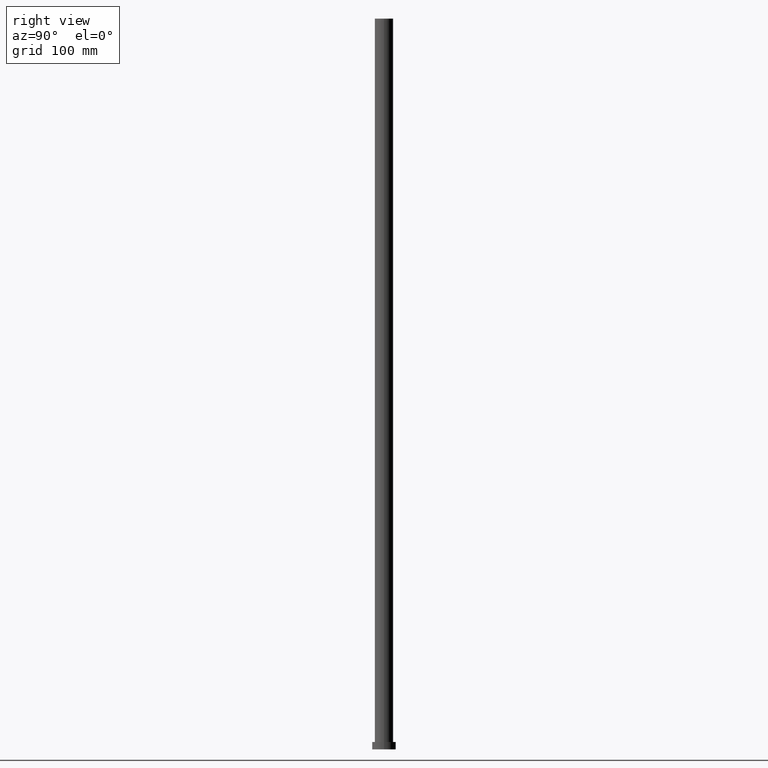
[diagram: clean part render]
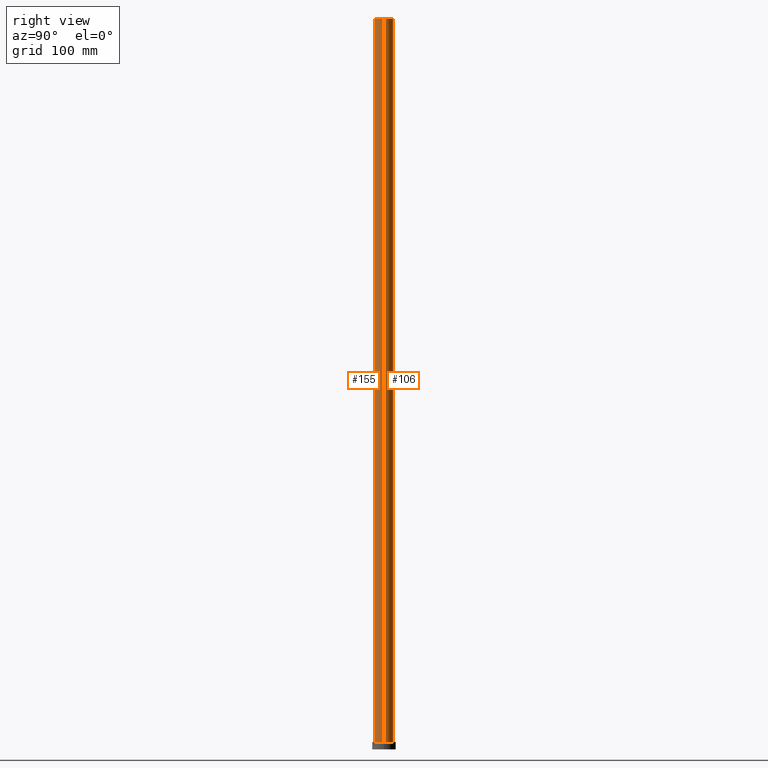
[diagram: same view with one multi-face feature highlighted, each face labeled with its STEP entity id]
A machine part, right view. The highlighted faces form ONE feature: a constant-radius fillet chain: 2 tangent blend faces with common blend radius 10 mm. The faces share edges in the B-rep.
Their STEP definitions:
[1] entity #155 (Cylinder):
#5 = CARTESIAN_POINT ( 'NONE',  ( 10.00000000000000000, 1.224646799147353256E-15, 8.000000000000000000 ) ) ;
#10 = CIRCLE ( 'NONE', #154, 10.00000000000000000 ) ;
#13 = VECTOR ( 'NONE', #92, 1000.000000000000000 ) ;
#15 = VERTEX_POINT ( 'NONE', #5 ) ;
#19 = DIRECTION ( 'NONE',  ( 0.000000000000000000, 0.000000000000000000, 1.000000000000000000 ) ) ;
#21 = LINE ( 'NONE', #230, #13 ) ;
#25 = CARTESIAN_POINT ( 'NONE',  ( 10.00000000000000000, 1.224646799147353256E-15, 800.0000000000000000 ) ) ;
#36 = VECTOR ( 'NONE', #99, 1000.000000000000000 ) ;
#38 = EDGE_CURVE ( 'NONE', #199, #90, #131, .T. ) ;
#41 = DIRECTION ( 'NONE',  ( -0.000000000000000000, -0.000000000000000000, -1.000000000000000000 ) ) ;
#44 = DIRECTION ( 'NONE',  ( 1.000000000000000000, 0.000000000000000000, 0.000000000000000000 ) ) ;
#47 = VERTEX_POINT ( 'NONE', #25 ) ;
#56 = CARTESIAN_POINT ( 'NONE',  ( 0.000000000000000000, 0.000000000000000000, 8.000000000000000000 ) ) ;
#58 = DIRECTION ( 'NONE',  ( 1.000000000000000000, 0.000000000000000000, 0.000000000000000000 ) ) ;
#60 = CARTESIAN_POINT ( 'NONE',  ( 0.000000000000000000, 0.000000000000000000, 800.0000000000000000 ) ) ;
#62 = CARTESIAN_POINT ( 'NONE',  ( -10.00000000000000000, 0.000000000000000000, 8.000000000000000000 ) ) ;
#82 = CARTESIAN_POINT ( 'NONE',  ( -10.00000000000000000, 0.000000000000000000, 800.0000000000000000 ) ) ;
#90 = VERTEX_POINT ( 'NONE', #62 ) ;
#92 = DIRECTION ( 'NONE',  ( -0.000000000000000000, -0.000000000000000000, -1.000000000000000000 ) ) ;
#99 = DIRECTION ( 'NONE',  ( -0.000000000000000000, -0.000000000000000000, -1.000000000000000000 ) ) ;
#121 = DIRECTION ( 'NONE',  ( -1.000000000000000000, 0.000000000000000000, 0.000000000000000000 ) ) ;
#131 = LINE ( 'NONE', #82, #36 ) ;
#154 = AXIS2_PLACEMENT_3D ( 'NONE', #56, #19, #58 ) ;
#155 = ADVANCED_FACE ( 'NONE', ( #195 ), #238, .T. ) ;
#165 = ORIENTED_EDGE ( 'NONE', *, *, #192, .F. ) ;
#179 = EDGE_CURVE ( 'NONE', #199, #47, #251, .T. ) ;
#184 = ORIENTED_EDGE ( 'NONE', *, *, #179, .F. ) ;
#192 = EDGE_CURVE ( 'NONE', #47, #15, #21, .T. ) ;
#195 = FACE_OUTER_BOUND ( 'NONE', #223, .T. ) ;
#199 = VERTEX_POINT ( 'NONE', #210 ) ;
#208 = AXIS2_PLACEMENT_3D ( 'NONE', #60, #41, #121 ) ;
#210 = CARTESIAN_POINT ( 'NONE',  ( -10.00000000000000000, 0.000000000000000000, 800.0000000000000000 ) ) ;
#213 = ORIENTED_EDGE ( 'NONE', *, *, #228, .T. ) ;
#216 = CARTESIAN_POINT ( 'NONE',  ( 0.000000000000000000, 0.000000000000000000, 800.0000000000000000 ) ) ;
#217 = ORIENTED_EDGE ( 'NONE', *, *, #38, .T. ) ;
#223 = EDGE_LOOP ( 'NONE', ( #165, #184, #217, #213 ) ) ;
#228 = EDGE_CURVE ( 'NONE', #90, #15, #10, .T. ) ;
#230 = CARTESIAN_POINT ( 'NONE',  ( 10.00000000000000000, 1.224646799147353256E-15, 800.0000000000000000 ) ) ;
#235 = DIRECTION ( 'NONE',  ( 0.000000000000000000, 0.000000000000000000, 1.000000000000000000 ) ) ;
#238 = CYLINDRICAL_SURFACE ( 'NONE', #208, 10.00000000000000000 ) ;
#246 = AXIS2_PLACEMENT_3D ( 'NONE', #216, #235, #44 ) ;
#251 = CIRCLE ( 'NONE', #246, 10.00000000000000000 ) ;
[2] entity #106 (Cylinder):
#2 = CARTESIAN_POINT ( 'NONE',  ( 0.000000000000000000, 0.000000000000000000, 800.0000000000000000 ) ) ;
#5 = CARTESIAN_POINT ( 'NONE',  ( 10.00000000000000000, 1.224646799147353256E-15, 8.000000000000000000 ) ) ;
#6 = CARTESIAN_POINT ( 'NONE',  ( 0.000000000000000000, 0.000000000000000000, 8.000000000000000000 ) ) ;
#13 = VECTOR ( 'NONE', #92, 1000.000000000000000 ) ;
#15 = VERTEX_POINT ( 'NONE', #5 ) ;
#21 = LINE ( 'NONE', #230, #13 ) ;
#25 = CARTESIAN_POINT ( 'NONE',  ( 10.00000000000000000, 1.224646799147353256E-15, 800.0000000000000000 ) ) ;
#26 = CARTESIAN_POINT ( 'NONE',  ( 0.000000000000000000, 0.000000000000000000, 800.0000000000000000 ) ) ;
#33 = EDGE_LOOP ( 'NONE', ( #65, #202, #214, #52 ) ) ;
#36 = VECTOR ( 'NONE', #99, 1000.000000000000000 ) ;
#38 = EDGE_CURVE ( 'NONE', #199, #90, #131, .T. ) ;
#47 = VERTEX_POINT ( 'NONE', #25 ) ;
#52 = ORIENTED_EDGE ( 'NONE', *, *, #38, .F. ) ;
#62 = CARTESIAN_POINT ( 'NONE',  ( -10.00000000000000000, 0.000000000000000000, 8.000000000000000000 ) ) ;
#65 = ORIENTED_EDGE ( 'NONE', *, *, #186, .F. ) ;
#77 = DIRECTION ( 'NONE',  ( 0.000000000000000000, 0.000000000000000000, 1.000000000000000000 ) ) ;
#82 = CARTESIAN_POINT ( 'NONE',  ( -10.00000000000000000, 0.000000000000000000, 800.0000000000000000 ) ) ;
#90 = VERTEX_POINT ( 'NONE', #62 ) ;
#92 = DIRECTION ( 'NONE',  ( -0.000000000000000000, -0.000000000000000000, -1.000000000000000000 ) ) ;
#99 = DIRECTION ( 'NONE',  ( -0.000000000000000000, -0.000000000000000000, -1.000000000000000000 ) ) ;
#100 = DIRECTION ( 'NONE',  ( 1.000000000000000000, 0.000000000000000000, 0.000000000000000000 ) ) ;
#106 = ADVANCED_FACE ( 'NONE', ( #196 ), #153, .T. ) ;
#114 = DIRECTION ( 'NONE',  ( -0.000000000000000000, -0.000000000000000000, -1.000000000000000000 ) ) ;
#119 = AXIS2_PLACEMENT_3D ( 'NONE', #6, #170, #100 ) ;
#123 = AXIS2_PLACEMENT_3D ( 'NONE', #2, #77, #150 ) ;
#131 = LINE ( 'NONE', #82, #36 ) ;
#150 = DIRECTION ( 'NONE',  ( 1.000000000000000000, 0.000000000000000000, 0.000000000000000000 ) ) ;
#153 = CYLINDRICAL_SURFACE ( 'NONE', #178, 10.00000000000000000 ) ;
#161 = EDGE_CURVE ( 'NONE', #15, #90, #191, .T. ) ;
#170 = DIRECTION ( 'NONE',  ( 0.000000000000000000, 0.000000000000000000, 1.000000000000000000 ) ) ;
#178 = AXIS2_PLACEMENT_3D ( 'NONE', #26, #114, #187 ) ;
#186 = EDGE_CURVE ( 'NONE', #47, #199, #233, .T. ) ;
#187 = DIRECTION ( 'NONE',  ( -1.000000000000000000, 0.000000000000000000, 0.000000000000000000 ) ) ;
#191 = CIRCLE ( 'NONE', #119, 10.00000000000000000 ) ;
#192 = EDGE_CURVE ( 'NONE', #47, #15, #21, .T. ) ;
#196 = FACE_OUTER_BOUND ( 'NONE', #33, .T. ) ;
#199 = VERTEX_POINT ( 'NONE', #210 ) ;
#202 = ORIENTED_EDGE ( 'NONE', *, *, #192, .T. ) ;
#210 = CARTESIAN_POINT ( 'NONE',  ( -10.00000000000000000, 0.000000000000000000, 800.0000000000000000 ) ) ;
#214 = ORIENTED_EDGE ( 'NONE', *, *, #161, .T. ) ;
#230 = CARTESIAN_POINT ( 'NONE',  ( 10.00000000000000000, 1.224646799147353256E-15, 800.0000000000000000 ) ) ;
#233 = CIRCLE ( 'NONE', #123, 10.00000000000000000 ) ;